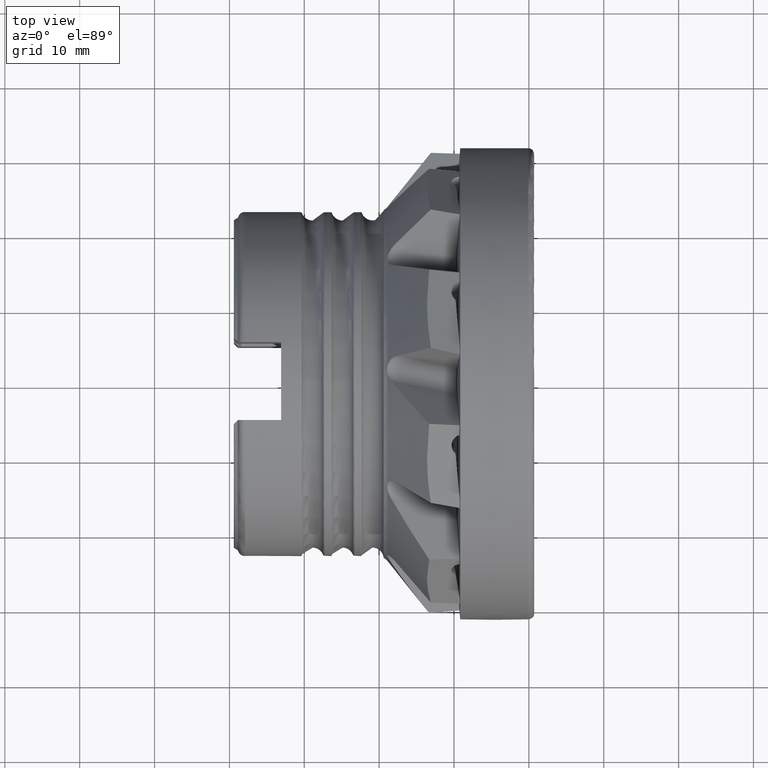
[diagram: clean part render]
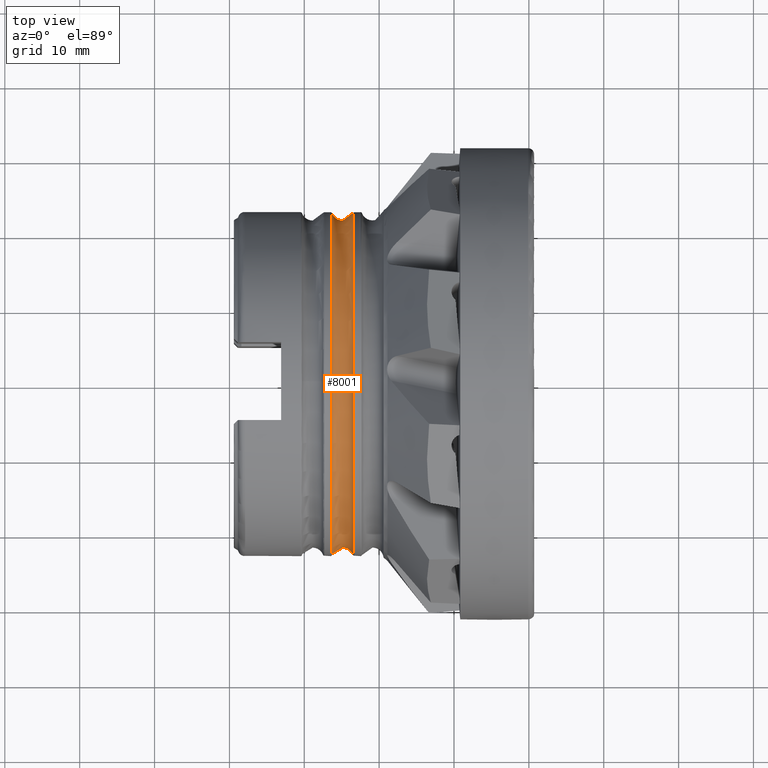
[diagram: same view with one face highlighted and labeled with its STEP entity id]
A machine part, top view. The second image highlights one B-rep face of the part: STEP entity #8001.
In plain terms, the highlighted toroidal blend (fillet) surface has major radius 23.4 mm and minor (blend) radius 1.5 mm.
Its self-contained STEP definition (entity closure, byte-faithful):
#106 = CIRCLE ( 'NONE', #6214, 22.87058823529432800 ) ;
#889 = CARTESIAN_POINT ( 'NONE',  ( -23.49653173053700100, 0.0000000000000000000, 22.87058823529432800 ) ) ;
#955 = DIRECTION ( 'NONE',  ( -1.000000000000000000, -0.0000000000000000000, -0.0000000000000000000 ) ) ;
#1617 = DIRECTION ( 'NONE',  ( 0.0000000000000000000, 0.0000000000000000000, 1.000000000000000000 ) ) ;
#2085 = VERTEX_POINT ( 'NONE', #2936 ) ;
#2751 = ORIENTED_EDGE ( 'NONE', *, *, #8132, .T. ) ;
#2936 = CARTESIAN_POINT ( 'NONE',  ( -26.30346826946298900, 0.0000000000000000000, -22.87058823529432800 ) ) ;
#3032 = CARTESIAN_POINT ( 'NONE',  ( -26.30346826946298900, 0.0000000000000000000, 0.0000000000000000000 ) ) ;
#3146 = DIRECTION ( 'NONE',  ( -1.000000000000000000, -0.0000000000000000000, -0.0000000000000000000 ) ) ;
#3635 = EDGE_LOOP ( 'NONE', ( #8188 ) ) ;
#3721 = DIRECTION ( 'NONE',  ( 0.0000000000000000000, 0.0000000000000000000, -1.000000000000000000 ) ) ;
#4155 = EDGE_CURVE ( 'NONE', #5200, #5200, #4195, .T. ) ;
#4195 = CIRCLE ( 'NONE', #8333, 22.87058823529432800 ) ;
#4854 = AXIS2_PLACEMENT_3D ( 'NONE', #4944, #955, #1617 ) ;
#4944 = CARTESIAN_POINT ( 'NONE',  ( -24.89999999999999500, 0.0000000000000000000, 0.0000000000000000000 ) ) ;
#5200 = VERTEX_POINT ( 'NONE', #889 ) ;
#5637 = FACE_OUTER_BOUND ( 'NONE', #3635, .T. ) ;
#5870 = FACE_OUTER_BOUND ( 'NONE', #8762, .T. ) ;
#6214 = AXIS2_PLACEMENT_3D ( 'NONE', #3032, #7812, #3721 ) ;
#7239 = CARTESIAN_POINT ( 'NONE',  ( -23.49653173053700100, 0.0000000000000000000, 0.0000000000000000000 ) ) ;
#7684 = TOROIDAL_SURFACE ( 'NONE', #4854, 23.40000000000000200, 1.500000000000000900 ) ;
#7812 = DIRECTION ( 'NONE',  ( 1.000000000000000000, 0.0000000000000000000, 0.0000000000000000000 ) ) ;
#7929 = DIRECTION ( 'NONE',  ( 0.0000000000000000000, 0.0000000000000000000, 1.000000000000000000 ) ) ;
#8001 = ADVANCED_FACE ( 'NONE', ( #5637, #5870 ), #7684, .F. ) ;
#8132 = EDGE_CURVE ( 'NONE', #2085, #2085, #106, .T. ) ;
#8188 = ORIENTED_EDGE ( 'NONE', *, *, #4155, .T. ) ;
#8333 = AXIS2_PLACEMENT_3D ( 'NONE', #7239, #3146, #7929 ) ;
#8762 = EDGE_LOOP ( 'NONE', ( #2751 ) ) ;